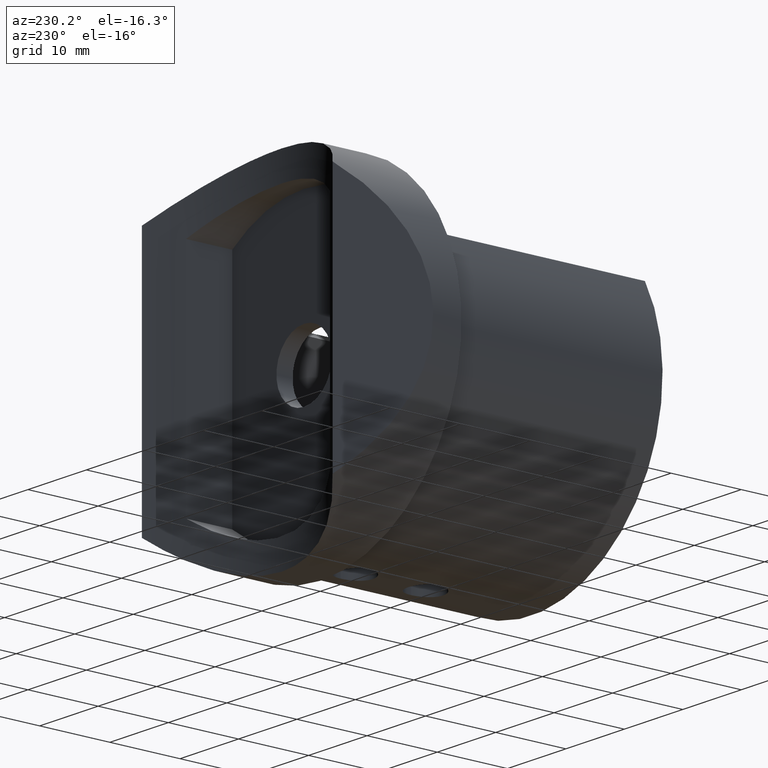
[diagram: clean part render]
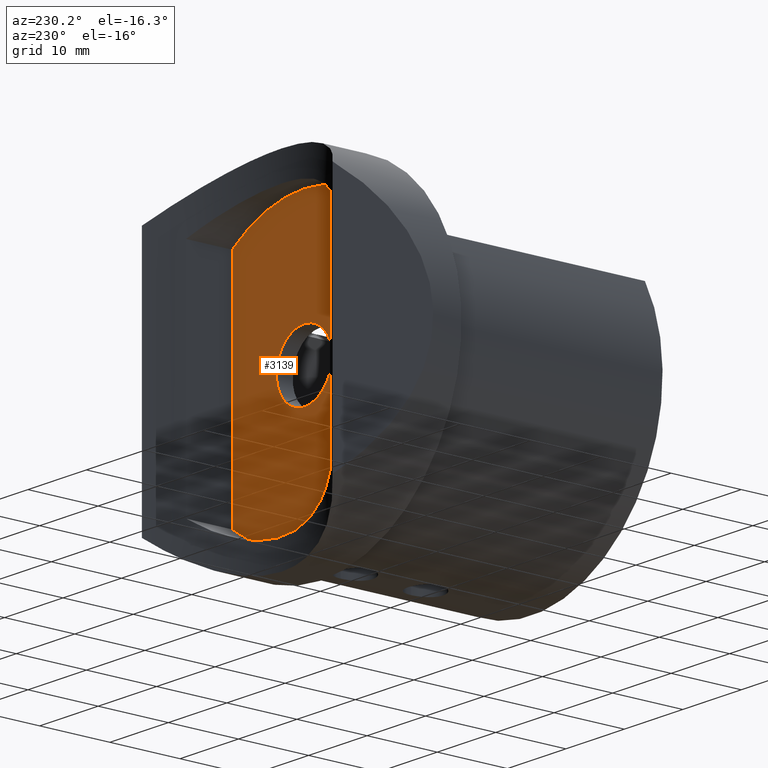
[diagram: same view with one face highlighted and labeled with its STEP entity id]
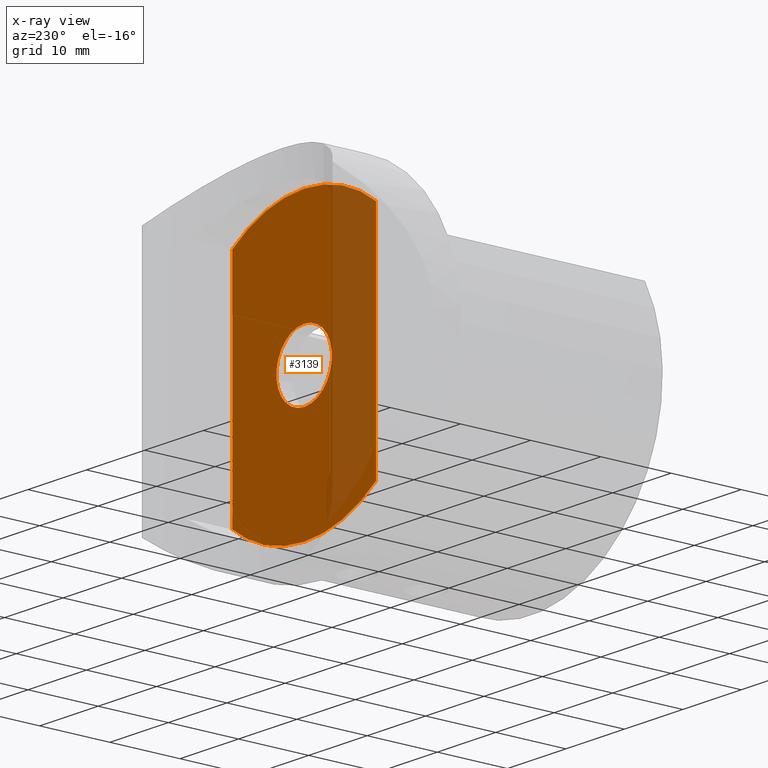
[diagram: x-ray of the same camera — body ghosted, the highlighted face saturated]
A machine part, auxiliary view. The second image highlights one B-rep face of the part: STEP entity #3139.
The next image is the same camera in x-ray: the body ghosted, the highlighted face saturated — about 32% of this face is hidden behind the body in this view.
In plain terms, the highlighted planar face has unit normal (0, 1, 0).
Its self-contained STEP definition (entity closure, byte-faithful):
#208 = CARTESIAN_POINT ( 'NONE',  ( 5.817072295949927400E-016, 2.299999999999999800, 4.750000000000000000 ) ) ;
#282 = CARTESIAN_POINT ( 'NONE',  ( -12.31000000000000400, 2.299999999999996300, -15.95262987723340800 ) ) ;
#348 = AXIS2_PLACEMENT_3D ( 'NONE', #14176, #11992, #5455 ) ;
#370 = DIRECTION ( 'NONE',  ( 0.0000000000000000000, -0.0000000000000000000, 1.000000000000000000 ) ) ;
#428 = ORIENTED_EDGE ( 'NONE', *, *, #10018, .T. ) ;
#491 = ORIENTED_EDGE ( 'NONE', *, *, #14102, .T. ) ;
#960 = CIRCLE ( 'NONE', #3895, 20.14999999999999900 ) ;
#1192 = AXIS2_PLACEMENT_3D ( 'NONE', #2632, #9075, #370 ) ;
#1356 = ORIENTED_EDGE ( 'NONE', *, *, #13163, .T. ) ;
#1551 = EDGE_CURVE ( 'NONE', #11070, #2418, #7886, .T. ) ;
#2049 = AXIS2_PLACEMENT_3D ( 'NONE', #6764, #12310, #5777 ) ;
#2418 = VERTEX_POINT ( 'NONE', #7282 ) ;
#2624 = ORIENTED_EDGE ( 'NONE', *, *, #6470, .T. ) ;
#2632 = CARTESIAN_POINT ( 'NONE',  ( 0.0000000000000000000, 2.299999999999999800, 0.0000000000000000000 ) ) ;
#3139 = ADVANCED_FACE ( 'NONE', ( #3682, #3338 ), #12377, .T. ) ;
#3224 = CIRCLE ( 'NONE', #2049, 4.750000000000000000 ) ;
#3338 = FACE_BOUND ( 'NONE', #9223, .T. ) ;
#3624 = DIRECTION ( 'NONE',  ( 0.0000000000000000000, 0.0000000000000000000, -1.000000000000000000 ) ) ;
#3682 = FACE_OUTER_BOUND ( 'NONE', #7015, .T. ) ;
#3817 = ORIENTED_EDGE ( 'NONE', *, *, #1551, .T. ) ;
#3895 = AXIS2_PLACEMENT_3D ( 'NONE', #13242, #6793, #11215 ) ;
#4705 = AXIS2_PLACEMENT_3D ( 'NONE', #12306, #11267, #8003 ) ;
#4889 = AXIS2_PLACEMENT_3D ( 'NONE', #5457, #11006, #12937 ) ;
#5225 = VERTEX_POINT ( 'NONE', #10198 ) ;
#5455 = DIRECTION ( 'NONE',  ( 0.0000000000000000000, 0.0000000000000000000, 1.000000000000000000 ) ) ;
#5457 = CARTESIAN_POINT ( 'NONE',  ( 0.0000000000000000000, 2.299999999999996300, 0.0000000000000000000 ) ) ;
#5770 = LINE ( 'NONE', #12445, #8144 ) ;
#5777 = DIRECTION ( 'NONE',  ( 0.0000000000000000000, 0.0000000000000000000, 1.000000000000000000 ) ) ;
#6005 = ORIENTED_EDGE ( 'NONE', *, *, #13779, .T. ) ;
#6470 = EDGE_CURVE ( 'NONE', #13819, #8718, #12841, .T. ) ;
#6764 = CARTESIAN_POINT ( 'NONE',  ( 0.0000000000000000000, 2.299999999999999800, 0.0000000000000000000 ) ) ;
#6793 = DIRECTION ( 'NONE',  ( 0.0000000000000000000, 1.000000000000000000, 0.0000000000000000000 ) ) ;
#6968 = DIRECTION ( 'NONE',  ( 0.0000000000000000000, 0.0000000000000000000, 1.000000000000000000 ) ) ;
#7015 = EDGE_LOOP ( 'NONE', ( #1356, #428, #491, #6005, #2624 ) ) ;
#7118 = CARTESIAN_POINT ( 'NONE',  ( 12.31000000000000400, 2.299999999999996300, -15.95262987723340800 ) ) ;
#7282 = CARTESIAN_POINT ( 'NONE',  ( 0.0000000000000000000, 2.299999999999999800, -4.750000000000000000 ) ) ;
#7886 = CIRCLE ( 'NONE', #348, 4.750000000000000000 ) ;
#8003 = DIRECTION ( 'NONE',  ( 0.0000000000000000000, 0.0000000000000000000, 1.000000000000000000 ) ) ;
#8012 = CIRCLE ( 'NONE', #4889, 20.14999999999999900 ) ;
#8092 = CARTESIAN_POINT ( 'NONE',  ( 0.0000000000000000000, 2.299999999999996300, 20.14999999999999900 ) ) ;
#8144 = VECTOR ( 'NONE', #3624, 1000.000000000000000 ) ;
#8309 = LINE ( 'NONE', #282, #9337 ) ;
#8423 = CARTESIAN_POINT ( 'NONE',  ( -12.30999999999999700, 2.299999999999996300, 15.95262987723341100 ) ) ;
#8718 = VERTEX_POINT ( 'NONE', #13424 ) ;
#9075 = DIRECTION ( 'NONE',  ( 0.0000000000000000000, 1.000000000000000000, 0.0000000000000000000 ) ) ;
#9223 = EDGE_LOOP ( 'NONE', ( #9478, #3817 ) ) ;
#9337 = VECTOR ( 'NONE', #6968, 1000.000000000000000 ) ;
#9478 = ORIENTED_EDGE ( 'NONE', *, *, #10693, .T. ) ;
#9899 = VERTEX_POINT ( 'NONE', #8423 ) ;
#10018 = EDGE_CURVE ( 'NONE', #12657, #5225, #8012, .T. ) ;
#10198 = CARTESIAN_POINT ( 'NONE',  ( -12.31000000000000400, 2.299999999999996300, -15.95262987723340800 ) ) ;
#10693 = EDGE_CURVE ( 'NONE', #2418, #11070, #3224, .T. ) ;
#11006 = DIRECTION ( 'NONE',  ( 0.0000000000000000000, 1.000000000000000000, 0.0000000000000000000 ) ) ;
#11070 = VERTEX_POINT ( 'NONE', #208 ) ;
#11215 = DIRECTION ( 'NONE',  ( 0.0000000000000000000, 0.0000000000000000000, 1.000000000000000000 ) ) ;
#11267 = DIRECTION ( 'NONE',  ( 0.0000000000000000000, 1.000000000000000000, 0.0000000000000000000 ) ) ;
#11992 = DIRECTION ( 'NONE',  ( -0.0000000000000000000, -1.000000000000000000, -0.0000000000000000000 ) ) ;
#12306 = CARTESIAN_POINT ( 'NONE',  ( 0.0000000000000000000, 2.299999999999996300, 0.0000000000000000000 ) ) ;
#12310 = DIRECTION ( 'NONE',  ( -0.0000000000000000000, -1.000000000000000000, -0.0000000000000000000 ) ) ;
#12377 = PLANE ( 'NONE',  #1192 ) ;
#12445 = CARTESIAN_POINT ( 'NONE',  ( 12.31000000000000400, 2.299999999999996300, -15.95262987723340800 ) ) ;
#12657 = VERTEX_POINT ( 'NONE', #7118 ) ;
#12841 = CIRCLE ( 'NONE', #4705, 20.14999999999999900 ) ;
#12937 = DIRECTION ( 'NONE',  ( 0.0000000000000000000, 0.0000000000000000000, 1.000000000000000000 ) ) ;
#13163 = EDGE_CURVE ( 'NONE', #8718, #12657, #5770, .T. ) ;
#13242 = CARTESIAN_POINT ( 'NONE',  ( 0.0000000000000000000, 2.299999999999996300, 0.0000000000000000000 ) ) ;
#13424 = CARTESIAN_POINT ( 'NONE',  ( 12.31000000000000400, 2.299999999999996300, 15.95262987723340800 ) ) ;
#13779 = EDGE_CURVE ( 'NONE', #9899, #13819, #960, .T. ) ;
#13819 = VERTEX_POINT ( 'NONE', #8092 ) ;
#14102 = EDGE_CURVE ( 'NONE', #5225, #9899, #8309, .T. ) ;
#14176 = CARTESIAN_POINT ( 'NONE',  ( 0.0000000000000000000, 2.299999999999999800, 0.0000000000000000000 ) ) ;